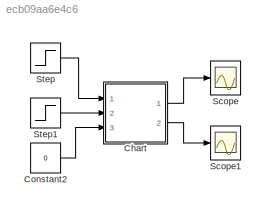
MODEL slx_ecb09aa6e4c6
KIND model
CONFIG AbsTol = auto
CONFIG EnableMultiTasking = off
CONFIG FixedStep = auto
CONFIG MaxStep = auto
CONFIG MinStep = 0.0001
CONFIG RelTol = 1e-3
CONFIG SampleTimeConstraint = Unconstrained
CONFIG SolverName = VariableStepAuto
CONFIG StartTime = 0.0
CONFIG StopTime = 18
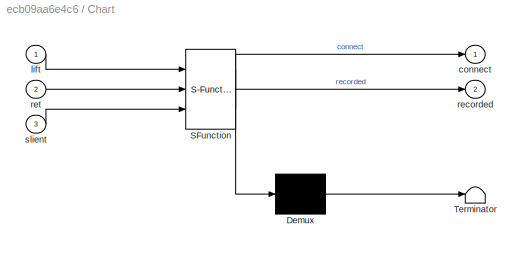
BLOCK [SubSystem] Chart
  ErrorFcn = Stateflow.Translate.translate
  PermitHierarchicalResolution = ExplicitOnly
  Ports = [3, 2]
  RequestExecContextInheritance = off
  SFBlockType = Chart
  TreatAsAtomicUnit = on
BLOCK [Demux] Chart/ Demux 
  Outputs = 1
  Ports = [1, 1]
BLOCK [S-Function] Chart/ SFunction 
  EnableBusSupport = on
  FunctionName = sf_sfun
  PortCounts = [3 3]
  Ports = [3, 3]
  SFcnIsStateOwnerBlock = off
  SFunctionDeploymentMode = off
  Tag = Stateflow S-Function 3
BLOCK [Terminator] Chart/ Terminator 
BLOCK [Outport] Chart/connect
BLOCK [Inport] Chart/lift
BLOCK [Outport] Chart/recorded
  Port = 2
BLOCK [Inport] Chart/ret
  Port = 2
BLOCK [Inport] Chart/slient
  Port = 3
BLOCK [Constant] Constant2
  Value = 0
BLOCK [Scope] Scope
  Floating = off
  NumInputPorts = 1
  Ports = [1]
  ScopeSpecificationString = Simulink.scopes.TimeScopeBlockCfg('CurrentConfiguration', extmgr.ConfigurationSet(extmgr.Configuration('Core','General UI',true),extmgr.Configuration('Core','Source UI',true),extmgr.Configuration('Sources','WiredSimulink',true),extmgr.Configuration('Visuals','Time Domain',true,'SerializedDisplays',{struct('MinYLimReal','-0.125','MaxYLimReal','1.125','YLabelReal','','MinYLimMag','0.00000','MaxYLimM...<+1389ch>
BLOCK [Scope] Scope1
  Floating = off
  NumInputPorts = 1
  Ports = [1]
  ScopeSpecificationString = Simulink.scopes.TimeScopeBlockCfg('CurrentConfiguration', extmgr.ConfigurationSet(extmgr.Configuration('Core','General UI',true),extmgr.Configuration('Core','Source UI',true),extmgr.Configuration('Sources','WiredSimulink',true,'DataLoggingVariableName','ScopeData1'),extmgr.Configuration('Visuals','Time Domain',true,'SerializedDisplays',{struct('MinYLimReal','-1.00000','MaxYLimReal','1.00000','YLab...<+1441ch>
BLOCK [Step] Step
  SampleTime = 0
  Time = 2
BLOCK [Step] Step1
  SampleTime = 0
  Time = 6
LINE Chart:1 -> Scope:1
LINE Chart:2 -> Scope1:1
LINE Constant2:1 -> Chart:3
LINE Step1:1 -> Chart:2
LINE Step:1 -> Chart:1
CHART Chart states=8 transitions=12
  STATE_LABEL 'ring\nconnect=0;'
  STATE_LABEL 'dead\nconnect=0;'
  STATE_LABEL 'talk\nconnect=1;'
  STATE_LABEL 'beep1\nconnect=0;\nrecorded=1;'
  STATE_LABEL 'play_text\nconnect=0;'
  STATE_LABEL 'beep\nconnect=0;'
  STATE_LABEL 'record\nconnect=0;'
  STATE_LABEL 'beep2\nconnect=0;\nrecorded=0;'
CHART  states=0 transitions=0
